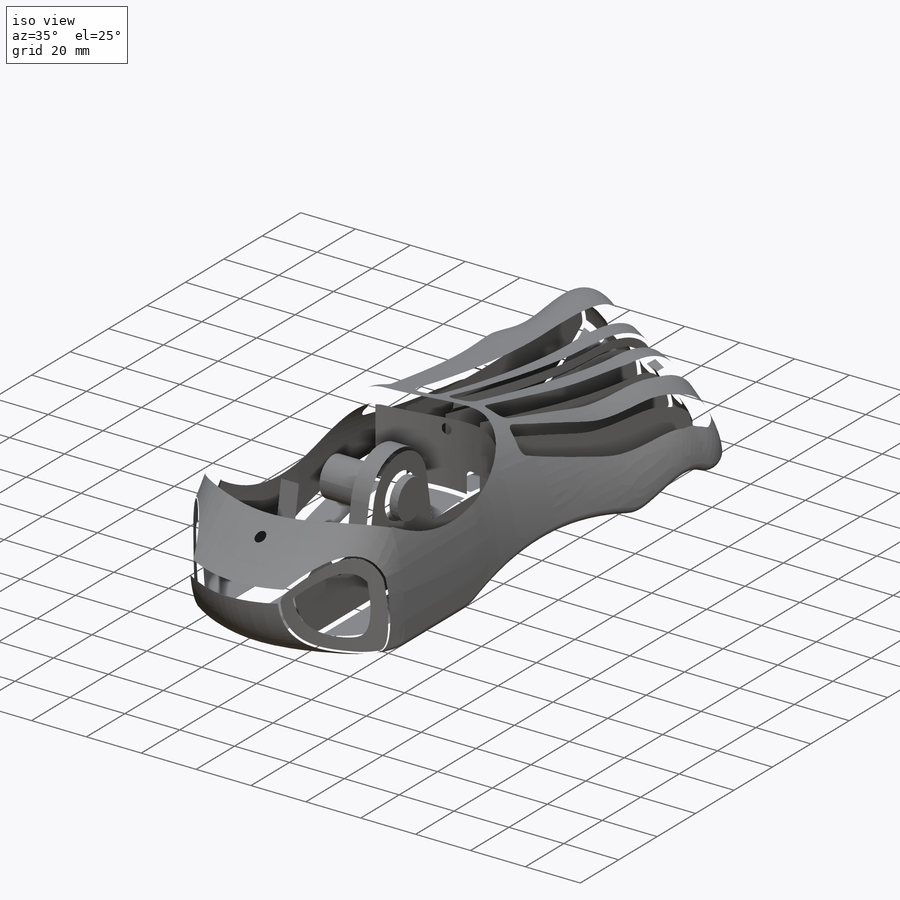
[diagram: iso view]
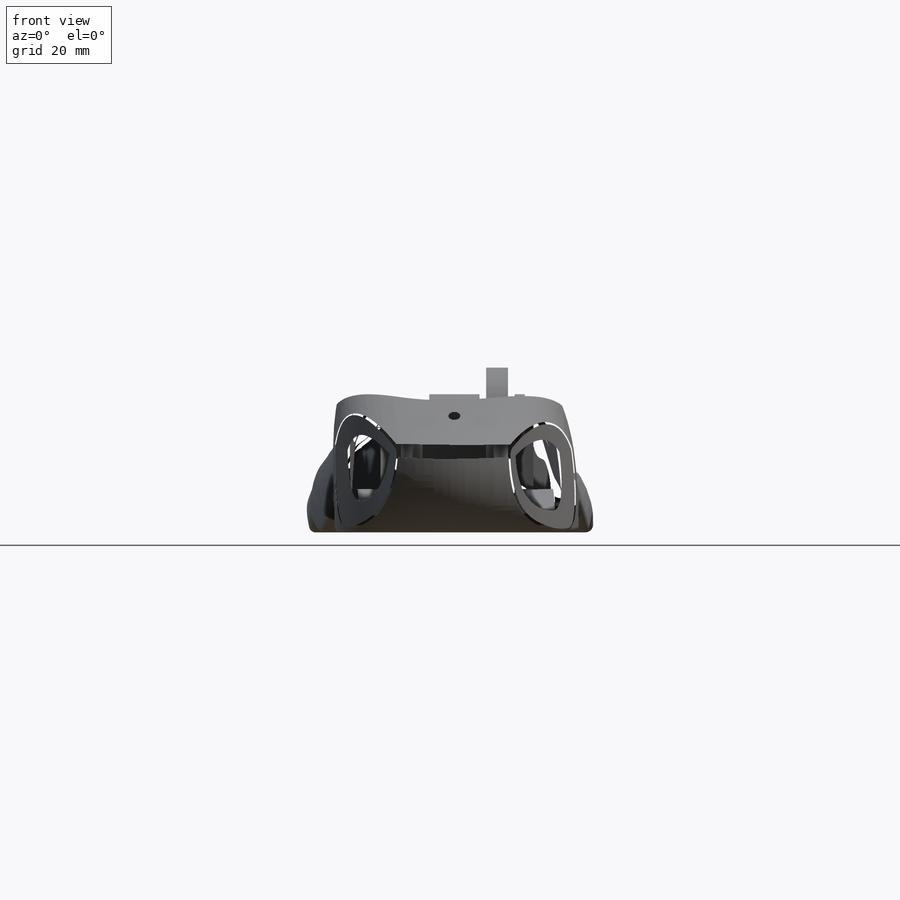
[diagram: front view]
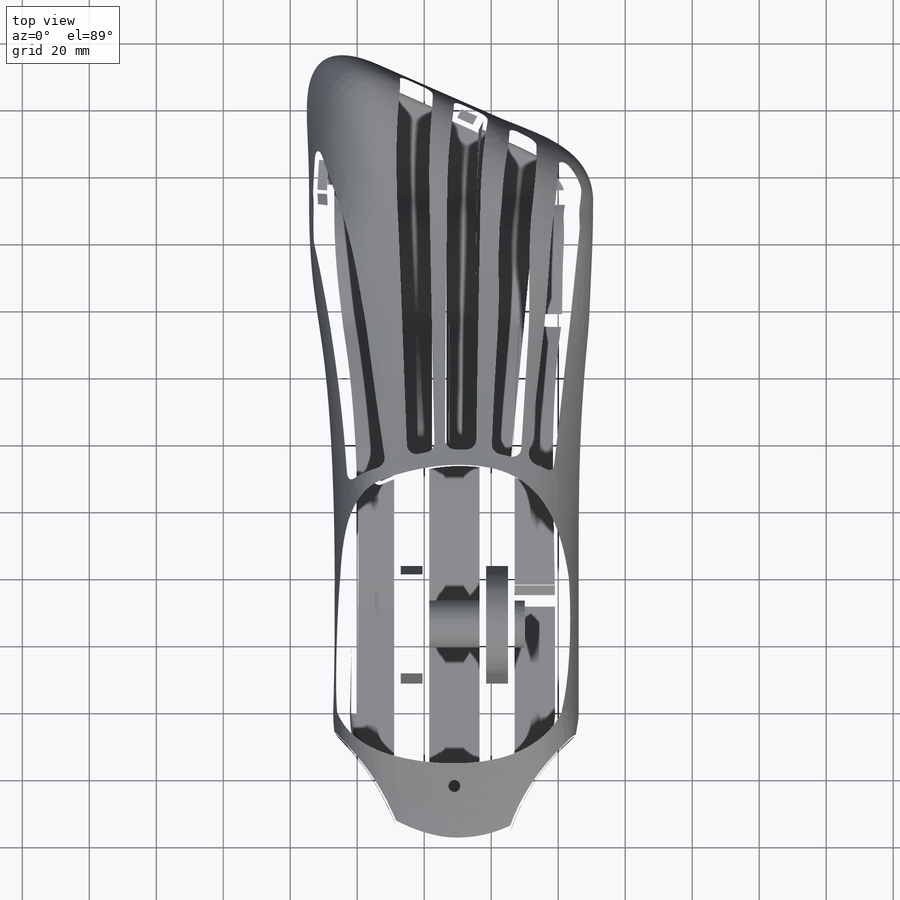
[diagram: top view]
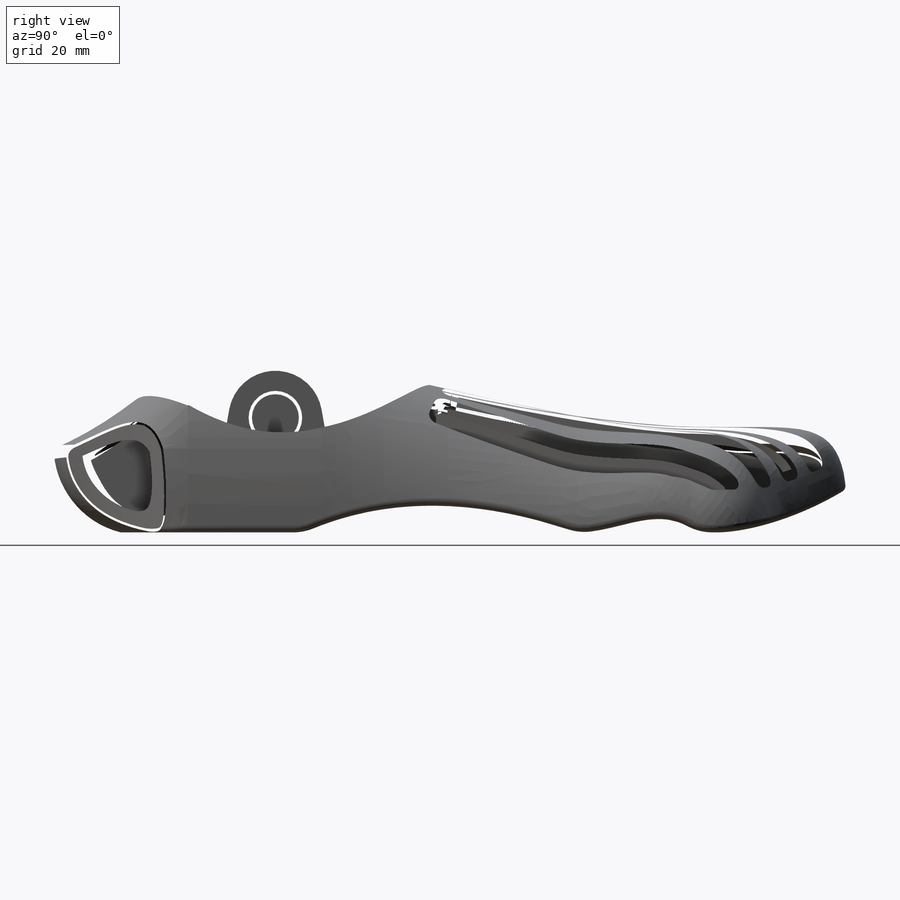
[diagram: right view]
SOLIDWORKS PART (.sldprt)
format: sldprt  version: not decoded by parser v0  size: 8,977,920 bytes
history: native  units: mm
features: sketch x51, fillet x32, plane x18, delete_body x4, shell x3, cut_extrude x3, extrude x3, cut_revolve x2, material x1, surface_op x1 (+9 scaffold rows collapsed)
feature tree (127):
  scaffold x9  (default folders/planes/origin — collapsed)
  material  "Material <nicht festgelegt>"
  plane  "Vorne"
  plane  "Oben"
  plane  "Rechts"
  sketch  "Skizze2"  dims[c1.D1=~105.367758mm c2.D1=90.0deg c3.D1=51.0mm c3.D2=220.0mm c3.D3=40.0mm c3.D4=11.0mm c3.D5=39.0mm c3.D6=13.0mm]
  sketch  "Skizze3"  dims[D1=29.0mm D2=17.0mm D3=33.0mm D4=11.0mm]
  sketch  "Skizze43"
  plane  "Ebene10"
  plane  "Ebene11"
  sketch  "Skizze44"  dims[D1=85.0mm]
  plane  "Ebene12"
  surface_op  "Oberfläche-Linear austragen3"
  sketch  "Skizze45"  dims[D1=30.0mm]
  sketch  "Skizze46"
  sketch  "Skizze48"
  plane  "Ebene13"
  sketch  "Skizze47"
  sketch  "Skizze50"
  sketch  "Skizze51"  dims[D1=150.0mm]
  sketch  "Skizze52"
  plane  "Ebene14"
  sketch  "Skizze54"
  sketch  "Skizze55"
  sketch  "Skizze53"
  plane  "Ebene18"
  sketch  "Skizze53<29>"
  sketch  "Skizze53<30>"
  sketch  "Skizze56"
  sketch  "Skizze56<3>"
  delete_body  "Körper-Löschen1"
  plane  "Ebene15"  Offset=40mm
  sketch  "Skizze74"  dims[D1=80.0mm D2=16.0mm D3=10.0mm]
  sketch  "Skizze57"  dims[D1=11.0mm]
  sketch  "Skizze59"  dims[D1=60.0mm D2=11.0mm]
  plane  "mitte"
  sketch  "Skizze60"  dims[D1=15.0mm D2=80.0mm]
  plane  "Ebene17"
  sketch  "Skizze62"
  sketch  "Skizze65"
  sketch  "Skizze64"
  delete_body  "Trennlinie5"
  sketch  "Skizze67"
  sketch  "Skizze59<25>"
  sketch  "Skizze88"  dims[D1=115.0mm]
  sketch  "Skizze23"  dims[D1=13.4mm D2=15.0mm]
  sketch  "Skizze76"  dims[D3=100.0mm D1=12.0mm D2=10.0mm]
  delete_body  "Körper-Löschen2"
  delete_body  "Körper-Löschen3"
  shell  "Wandung1"  Thickness=5mm
  sketch  "Skizze89"  dims[D1=80.0mm D2=12.0mm D3=10.0mm]
  fillet  "Verrundung23"  Radius=16mm
  fillet  "Verrundung24"  Radius=2mm
  sketch  "Skizze90"  dims[D1=~58.908132mm]
  cut_extrude  "Schnitt-Linear austragen2"  [1 undecoded]
  sketch  "Skizze91"
  cut_extrude  "Schnitt-Linear austragen3"  [1 undecoded]
  sketch  "Skizze92"  dims[D1=110.0mm D2=10.0mm D3=12.0mm]
  extrude  "Aufsatz-Linear austragen1"  Depth=42mm
  shell  "Oberfläche-Offset15"  Thickness=0mm
  shell  "Oberfläche-Offset16"  Thickness=6mm
  plane  "Ebene19"  Offset=12mm
  sketch  "Skizze96"  dims[D1=12.0mm D2=50.0mm]
  cut_revolve  "Schnitt-Rotation9"  Angle=360deg
  fillet  "Verrundung59"  Radius=2mm
  fillet  "Verrundung60"  Radius=2mm
  sketch  "Skizze95"
  fillet  "Verrundung84"  Radius=4mm
  fillet  "Verrundung43"  Radius=2mm
  fillet  "Verrundung44"  Radius=2mm
  fillet  "Verrundung48"  Radius=2mm
  fillet  "Verrundung49"  Radius=1mm
  fillet  "Verrundung50"  Radius=1mm
  fillet  "Verrundung51"  Radius=1mm
  fillet  "Verrundung52"  Radius=1mm
  fillet  "Verrundung53"  Radius=1mm
  fillet  "Verrundung54"  Radius=1mm
  fillet  "Verrundung56"  Radius=1mm
  fillet  "Verrundung58"  Radius=1mm
  fillet  "Verrundung61"  Radius=9mm
  fillet  "Verrundung62"  Radius=2mm
  fillet  "Verrundung63"  Radius=2mm
  fillet  "Verrundung67"  Radius=0.1mm
  fillet  "Verrundung68"  Radius=1mm
  sketch  "Skizze97"  dims[c1.D1=15.0mm c1.D5=14.0mm c1.D2=~88.989634mm c2.D2=10.0deg c2.D3=40.0mm c3.D3=10.0deg c3.D4=33.0mm c3.D2=~40.604723mm c4.D2=10.0deg c4.D3=40.0mm c5.D3=10.0deg c5.D5=15.0mm c5.D2=~43.863649mm c6.D2=80.0deg c6.D3=~43.863649mm c7.D3=80.0deg c7.D5=4.0mm c7.D6=~13.858193mm]
  plane  "Ebene20"  Offset=28mm
  plane  "Ebene21"  Offset=6mm
  sketch  "Skizze101"  dims[D1=0.0mm]
  extrude  "Aufsatz-Linear austragen3"  Depth=8.5mm
  sketch  "Skizze102"  dims[D1=0.0mm]
  extrude  "Aufsatz-Linear austragen4"  Depth=8.5mm
  plane  "Ebene22"  Offset=24mm
  sketch  "Skizze105"  dims[D1=8.5mm D2=8.5mm D5=3.0mm D6=1.0mm D7=5.0mm]
  sketch  "Skizze106"  dims[D1=8.5mm D2=8.5mm D5=3.0mm D6=1.0mm D7=5.0mm]
  plane  "Ebene23"  Offset=28mm
  sketch  "Skizze107"  dims[D1=8.5mm D2=8.5mm D5=3.0mm D6=1.0mm D7=5.0mm]
  sketch  "Skizze108"  dims[D1=8.5mm D2=8.5mm D5=3.0mm D6=1.0mm D7=5.0mm]
  sketch  "Skizze109"  dims[D1=1.0mm D2=1.0mm D5=3.0mm D6=1.0mm D7=5.0mm]
  plane  "Ebene24"  Offset=9mm
  sketch  "Skizze109<2>"  dims[D1=1.0mm D5=3.0mm D6=1.0mm D7=5.0mm]
  sketch  "Skizze110"  dims[c1.D1=4.25mm c2.D1=1.0mm c2.D5=8.5mm c2.D6=1.0mm c2.D7=5.0mm]
  sketch  "Skizze111"  dims[c1.D1=4.25mm c2.D1=1.0mm c2.D5=8.5mm c2.D6=1.0mm c2.D7=5.0mm]
  sketch  "Skizze114"  dims[c1.D1=~127.925942mm c2.D1=60.0deg c3.D1=8.5mm]
  sketch  "Skizze115"  dims[D1=8.5mm]
  fillet  "Verrundung74"  Radius=1mm
  fillet  "Verrundung76"  Radius=1mm
  fillet  "Verrundung78"  Radius=1mm
  fillet  "Verrundung79"  Radius=0.7mm
  fillet  "Verrundung80"  Radius=0.7mm
  fillet  "Verrundung81"  Radius=0.7mm
  fillet  "Verrundung82"  Radius=0.7mm
  fillet  "Verrundung83"  Radius=0.7mm
  sketch  "Skizze112"  dims[c1.D1=~127.925942mm c2.D1=15.0deg c2.D2=11.0mm c2.D3=40.0mm c2.D4=8.0mm c2.D5=1.25mm]
  cut_revolve  "Schnitt-Rotation10"  Angle=360deg
  fillet  "Verrundung85"  Radius=0.5mm
  sketch  "Skizze113"  dims[D1=2.5mm D2=62.0mm]
  cut_extrude  "Schnitt-Linear austragen4"  [1 undecoded]
  fillet  "Verrundung86"  Radius=0.5mm
  fillet  "Verrundung87"  Radius=1mm
decode coverage: 71 of 99 modeling features carry decoded parameters
note: ~ marks probable driven/reference dimensions
note: 3 parameter values undecoded
summary: no parameter record found for 3 features
note: suppression state not decoded; provenance and decode notes live in map.json
